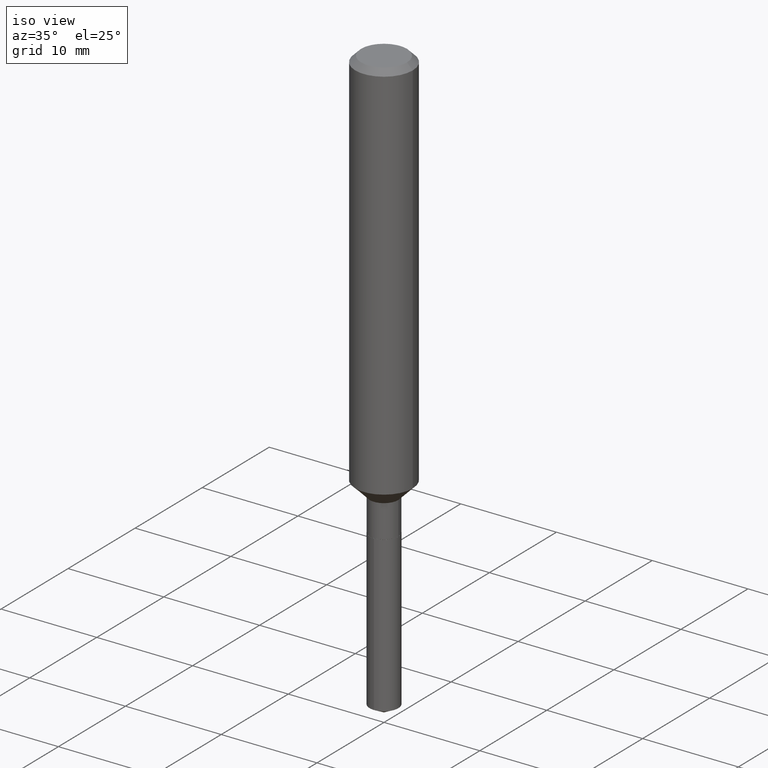
[diagram: clean part render]
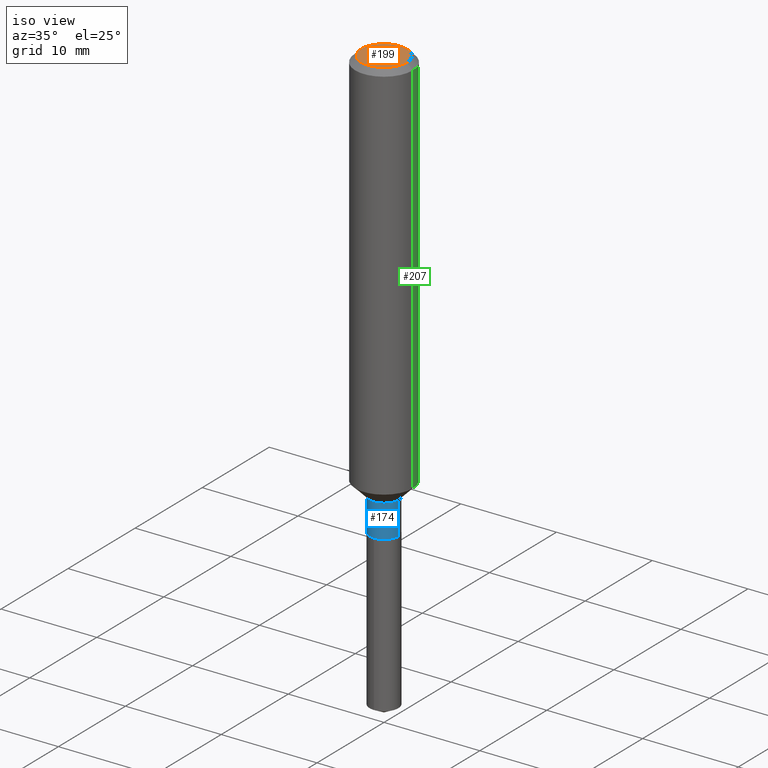
[diagram: same view with three faces highlighted in distinct colors, each labeled with its STEP entity id]
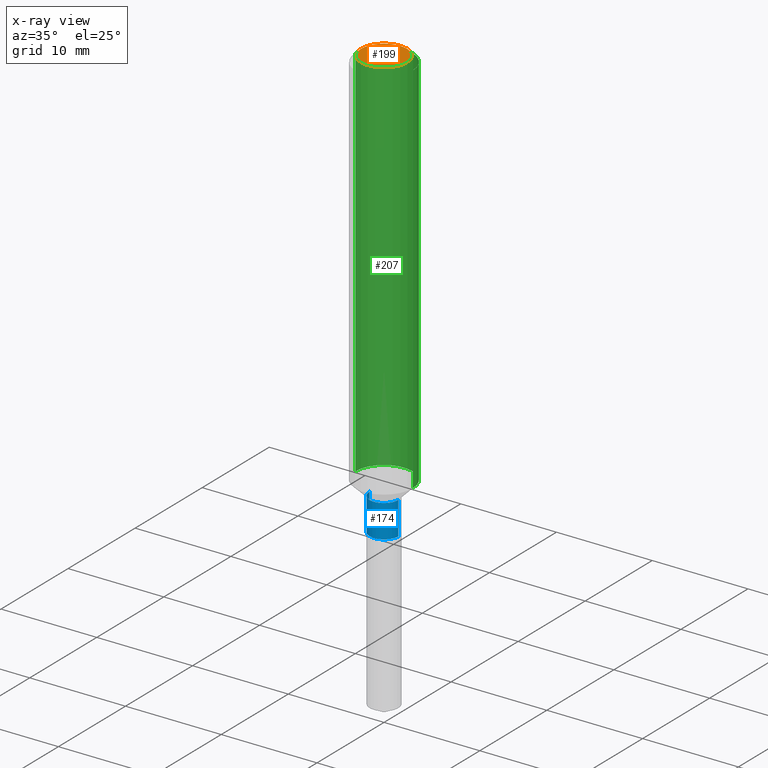
[diagram: x-ray of the same camera — body ghosted, the three highlighted faces saturated]
A machine part, iso view with three faces highlighted in distinct colors.
The next image is the same camera in x-ray (body ghosted, the three faces saturated) — at least one of them is partly hidden behind the body in this view.
Their STEP definitions:

[orange] entity #199 — the highlighted planar face has unit normal (0, -0, -1).
#5 = VERTEX_POINT ( 'NONE', #363 ) ;
#29 = DIRECTION ( 'NONE',  ( 2.438088387897960049E-29, -3.491481338843145188E-15, -1.000000000000000000 ) ) ;
#32 = DIRECTION ( 'NONE',  ( 1.000000000000000000, -6.982962677686267499E-15, 4.875432709231658792E-29 ) ) ;
#144 = PLANE ( 'NONE',  #313 ) ;
#159 = EDGE_LOOP ( 'NONE', ( #448, #456 ) ) ;
#160 = DIRECTION ( 'NONE',  ( 1.000000000000000000, -6.982962677686267499E-15, 4.875432709231658792E-29 ) ) ;
#165 = CARTESIAN_POINT ( 'NONE',  ( 6.603013411620882309E-46, -9.427353171913646324E-32, -2.700101262760083747E-17 ) ) ;
#169 = DIRECTION ( 'NONE',  ( -1.000000000000000000, 6.982962677686265922E-15, -4.876176775795935793E-29 ) ) ;
#184 = CIRCLE ( 'NONE', #268, 0.09447999999999998066 ) ;
#199 = ADVANCED_FACE ( 'NONE', ( #211 ), #144, .F. ) ;
#211 = FACE_OUTER_BOUND ( 'NONE', #159, .T. ) ;
#234 = DIRECTION ( 'NONE',  ( -2.445468806185136597E-29, 3.491481338843145583E-15, 1.000000000000000000 ) ) ;
#249 = VERTEX_POINT ( 'NONE', #413 ) ;
#268 = AXIS2_PLACEMENT_3D ( 'NONE', #165, #234, #160 ) ;
#287 = DIRECTION ( 'NONE',  ( -2.445468806185136597E-29, 3.491481338843145583E-15, 1.000000000000000000 ) ) ;
#313 = AXIS2_PLACEMENT_3D ( 'NONE', #452, #29, #169 ) ;
#358 = CIRCLE ( 'NONE', #468, 0.09447999999999998066 ) ;
#360 = CARTESIAN_POINT ( 'NONE',  ( 6.603013411620882309E-46, -9.427353171913646324E-32, -2.700101262760083747E-17 ) ) ;
#363 = CARTESIAN_POINT ( 'NONE',  ( 0.09447999999999998066, -7.704367267948738690E-16, -2.700101262759583929E-17 ) ) ;
#405 = EDGE_CURVE ( 'NONE', #249, #5, #184, .T. ) ;
#413 = CARTESIAN_POINT ( 'NONE',  ( -0.09447999999999998066, 7.009847083995354710E-16, -2.700101262760559836E-17 ) ) ;
#448 = ORIENTED_EDGE ( 'NONE', *, *, #405, .T. ) ;
#452 = CARTESIAN_POINT ( 'NONE',  ( 3.301506705810441154E-46, -4.713676585956823162E-32, -1.350050631380041873E-17 ) ) ;
#456 = ORIENTED_EDGE ( 'NONE', *, *, #472, .T. ) ;
#468 = AXIS2_PLACEMENT_3D ( 'NONE', #360, #287, #32 ) ;
#472 = EDGE_CURVE ( 'NONE', #5, #249, #358, .T. ) ;

[blue] entity #174 — the highlighted cylindrical surface (edge-blend (fillet) strip) has radius 1.4999 mm, axis along (-0, 0, 1).
#1 = DIRECTION ( 'NONE',  ( -2.445468806185136597E-29, 3.491481338843145583E-15, 1.000000000000000000 ) ) ;
#34 = CARTESIAN_POINT ( 'NONE',  ( 0.000000000000000000, 0.000000000000000000, 0.000000000000000000 ) ) ;
#36 = CYLINDRICAL_SURFACE ( 'NONE', #131, 0.05904999999999981097 ) ;
#40 = ORIENTED_EDGE ( 'NONE', *, *, #181, .F. ) ;
#48 = CARTESIAN_POINT ( 'NONE',  ( -0.05904999999999981097, 4.195754854663378166E-16, -2.904631170795512433E-30 ) ) ;
#54 = DIRECTION ( 'NONE',  ( 1.000000000000000000, -6.982962677686261977E-15, 0.000000000000000000 ) ) ;
#67 = DIRECTION ( 'NONE',  ( -2.445468806185136877E-29, 3.491481338843145188E-15, 1.000000000000000000 ) ) ;
#103 = CARTESIAN_POINT ( 'NONE',  ( 4.000297873157646549E-29, -5.711365174079616690E-15, -1.635799999999999699 ) ) ;
#112 = DIRECTION ( 'NONE',  ( -2.445468806185136877E-29, 3.491481338843145188E-15, 1.000000000000000000 ) ) ;
#131 = AXIS2_PLACEMENT_3D ( 'NONE', #34, #1, #173 ) ;
#145 = CARTESIAN_POINT ( 'NONE',  ( 0.05904999999999981097, -6.123709120196989243E-15, -1.635799999999999699 ) ) ;
#154 = VERTEX_POINT ( 'NONE', #447 ) ;
#155 = CARTESIAN_POINT ( 'NONE',  ( -0.05904999999999981097, -5.527988401186018857E-15, -1.771100000000000341 ) ) ;
#173 = DIRECTION ( 'NONE',  ( 1.000000000000000000, -6.982962677686265922E-15, 4.876176775795936353E-29 ) ) ;
#174 = ADVANCED_FACE ( 'NONE', ( #208 ), #36, .T. ) ;
#176 = CARTESIAN_POINT ( 'NONE',  ( 0.05904999999999981097, -6.596106545342469408E-15, -1.771100000000000341 ) ) ;
#181 = EDGE_CURVE ( 'NONE', #154, #233, #339, .T. ) ;
#208 = FACE_OUTER_BOUND ( 'NONE', #488, .T. ) ;
#209 = ORIENTED_EDGE ( 'NONE', *, *, #270, .F. ) ;
#233 = VERTEX_POINT ( 'NONE', #145 ) ;
#270 = EDGE_CURVE ( 'NONE', #430, #154, #419, .T. ) ;
#283 = CIRCLE ( 'NONE', #383, 0.05904999999999981097 ) ;
#324 = VECTOR ( 'NONE', #67, 39.37007874015748143 ) ;
#326 = DIRECTION ( 'NONE',  ( 1.000000000000000000, -6.982962677686261977E-15, 0.000000000000000000 ) ) ;
#327 = CARTESIAN_POINT ( 'NONE',  ( 0.05904999999999981097, -4.123439461173727015E-16, 2.879382386107491112E-30 ) ) ;
#339 = CIRCLE ( 'NONE', #381, 0.05904999999999981097 ) ;
#352 = ORIENTED_EDGE ( 'NONE', *, *, #465, .T. ) ;
#362 = LINE ( 'NONE', #327, #324 ) ;
#375 = EDGE_CURVE ( 'NONE', #430, #445, #283, .T. ) ;
#381 = AXIS2_PLACEMENT_3D ( 'NONE', #103, #406, #326 ) ;
#382 = CARTESIAN_POINT ( 'NONE',  ( 4.331169802634495962E-29, -6.183762599225096855E-15, -1.771100000000000341 ) ) ;
#383 = AXIS2_PLACEMENT_3D ( 'NONE', #382, #474, #54 ) ;
#406 = DIRECTION ( 'NONE',  ( -2.445468806185136597E-29, 3.491481338843145583E-15, 1.000000000000000000 ) ) ;
#419 = LINE ( 'NONE', #48, #483 ) ;
#430 = VERTEX_POINT ( 'NONE', #155 ) ;
#445 = VERTEX_POINT ( 'NONE', #176 ) ;
#447 = CARTESIAN_POINT ( 'NONE',  ( -0.05904999999999981097, -5.527988401186018857E-15, -1.635799999999999699 ) ) ;
#465 = EDGE_CURVE ( 'NONE', #445, #233, #362, .T. ) ;
#474 = DIRECTION ( 'NONE',  ( -2.445468806185136597E-29, 3.491481338843145583E-15, 1.000000000000000000 ) ) ;
#478 = ORIENTED_EDGE ( 'NONE', *, *, #375, .T. ) ;
#483 = VECTOR ( 'NONE', #112, 39.37007874015748143 ) ;
#488 = EDGE_LOOP ( 'NONE', ( #209, #478, #352, #40 ) ) ;

[green] entity #207 — the highlighted cylindrical surface (edge-blend (fillet) strip) has radius 2.9997 mm, axis along (-0, 0, 1).
#11 = ORIENTED_EDGE ( 'NONE', *, *, #338, .F. ) ;
#37 = VECTOR ( 'NONE', #157, 39.37007874015748143 ) ;
#42 = LINE ( 'NONE', #244, #60 ) ;
#60 = VECTOR ( 'NONE', #134, 39.37007874015748143 ) ;
#66 = CARTESIAN_POINT ( 'NONE',  ( 0.000000000000000000, 0.000000000000000000, 0.000000000000000000 ) ) ;
#76 = CIRCLE ( 'NONE', #394, 0.1180999999999999966 ) ;
#89 = DIRECTION ( 'NONE',  ( -2.445468806185136597E-29, 3.491481338843145583E-15, 1.000000000000000000 ) ) ;
#96 = DIRECTION ( 'NONE',  ( -2.445468806185136597E-29, 3.491481338843145583E-15, 1.000000000000000000 ) ) ;
#123 = CARTESIAN_POINT ( 'NONE',  ( 5.776197320209327532E-31, -8.246878922347559293E-17, -0.02362000000000014088 ) ) ;
#125 = CARTESIAN_POINT ( 'NONE',  ( 0.1181000000000002048, -6.329881093255677887E-15, -1.576749999999999430 ) ) ;
#133 = FACE_OUTER_BOUND ( 'NONE', #282, .T. ) ;
#134 = DIRECTION ( 'NONE',  ( -2.445468806185136877E-29, 3.491481338843145188E-15, 1.000000000000000000 ) ) ;
#136 = EDGE_CURVE ( 'NONE', #414, #384, #433, .T. ) ;
#157 = DIRECTION ( 'NONE',  ( -2.445468806185136877E-29, 3.491481338843145188E-15, 1.000000000000000000 ) ) ;
#194 = CARTESIAN_POINT ( 'NONE',  ( 0.1180999999999999966, -9.071566814582237199E-16, -0.02362000000000014088 ) ) ;
#204 = ORIENTED_EDGE ( 'NONE', *, *, #337, .T. ) ;
#207 = ADVANCED_FACE ( 'NONE', ( #133 ), #277, .T. ) ;
#223 = DIRECTION ( 'NONE',  ( -2.445468806185136597E-29, 3.491481338843145583E-15, 1.000000000000000000 ) ) ;
#230 = AXIS2_PLACEMENT_3D ( 'NONE', #66, #223, #336 ) ;
#244 = CARTESIAN_POINT ( 'NONE',  ( 0.1181000000000001077, -8.246878922347488542E-16, 5.758764772215005345E-30 ) ) ;
#273 = CARTESIAN_POINT ( 'NONE',  ( -0.1180999999999999966, -1.954680024189521583E-15, -0.02362000000000014088 ) ) ;
#277 = CYLINDRICAL_SURFACE ( 'NONE', #230, 0.1181000000000001077 ) ;
#282 = EDGE_LOOP ( 'NONE', ( #204, #371, #11, #436 ) ) ;
#305 = CARTESIAN_POINT ( 'NONE',  ( -0.1181000000000001077, 8.391509709326790846E-16, -5.809262341591049389E-30 ) ) ;
#312 = CARTESIAN_POINT ( 'NONE',  ( -0.1181000000000002048, -4.666042230088248272E-15, -1.576749999999999430 ) ) ;
#336 = DIRECTION ( 'NONE',  ( 1.000000000000000000, -6.982962677686266711E-15, 4.876176775795935793E-29 ) ) ;
#337 = EDGE_CURVE ( 'NONE', #439, #414, #340, .T. ) ;
#338 = EDGE_CURVE ( 'NONE', #377, #384, #76, .T. ) ;
#340 = CIRCLE ( 'NONE', #485, 0.1181000000000002048 ) ;
#353 = DIRECTION ( 'NONE',  ( 1.000000000000000000, -6.982962677686266711E-15, 0.000000000000000000 ) ) ;
#371 = ORIENTED_EDGE ( 'NONE', *, *, #136, .T. ) ;
#377 = VERTEX_POINT ( 'NONE', #194 ) ;
#384 = VERTEX_POINT ( 'NONE', #273 ) ;
#394 = AXIS2_PLACEMENT_3D ( 'NONE', #123, #89, #353 ) ;
#414 = VERTEX_POINT ( 'NONE', #312 ) ;
#431 = CARTESIAN_POINT ( 'NONE',  ( 3.855892940152412927E-29, -5.505193201020928046E-15, -1.576749999999999430 ) ) ;
#433 = LINE ( 'NONE', #305, #37 ) ;
#436 = ORIENTED_EDGE ( 'NONE', *, *, #453, .F. ) ;
#439 = VERTEX_POINT ( 'NONE', #125 ) ;
#453 = EDGE_CURVE ( 'NONE', #439, #377, #42, .T. ) ;
#464 = DIRECTION ( 'NONE',  ( 1.000000000000000000, -6.982962677686268288E-15, 0.000000000000000000 ) ) ;
#485 = AXIS2_PLACEMENT_3D ( 'NONE', #431, #96, #464 ) ;